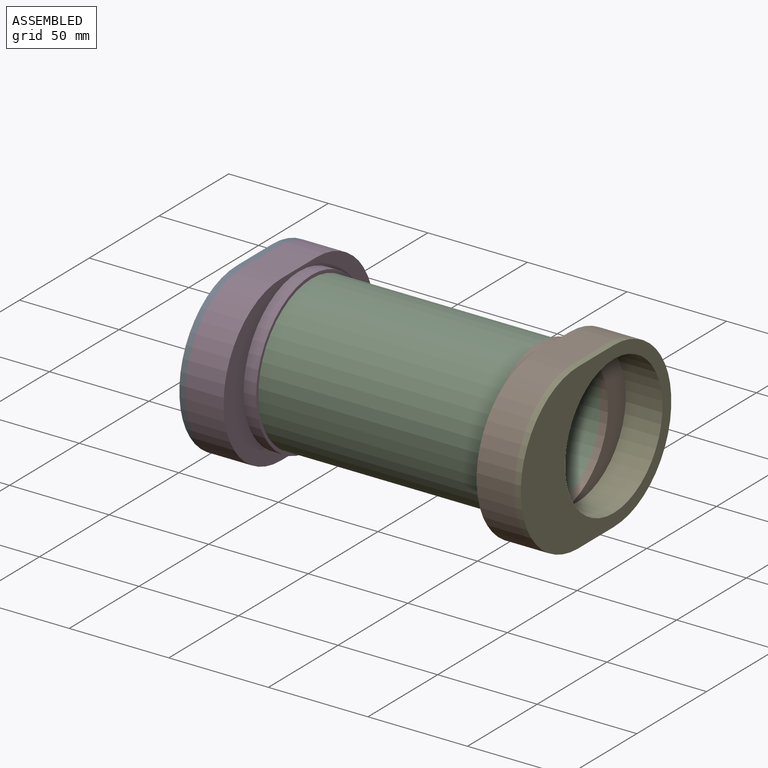
[diagram: assembled view]
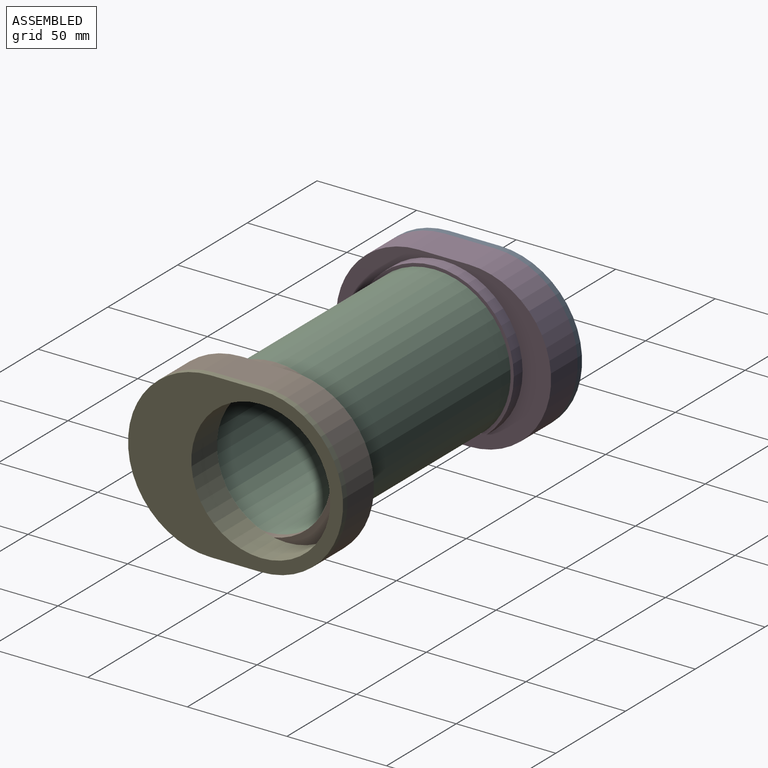
[diagram: assembled view, second angle]
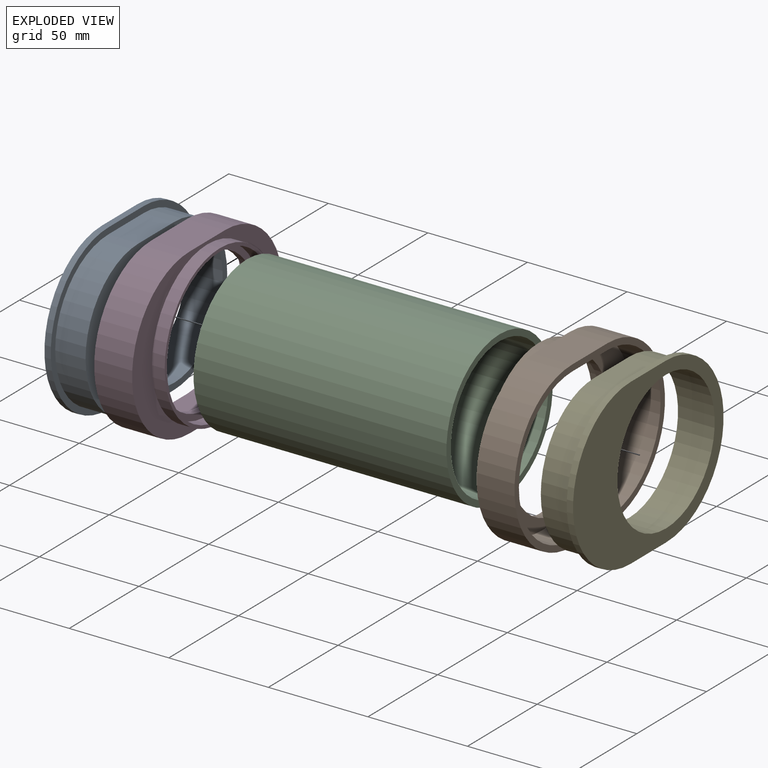
[diagram: exploded view]
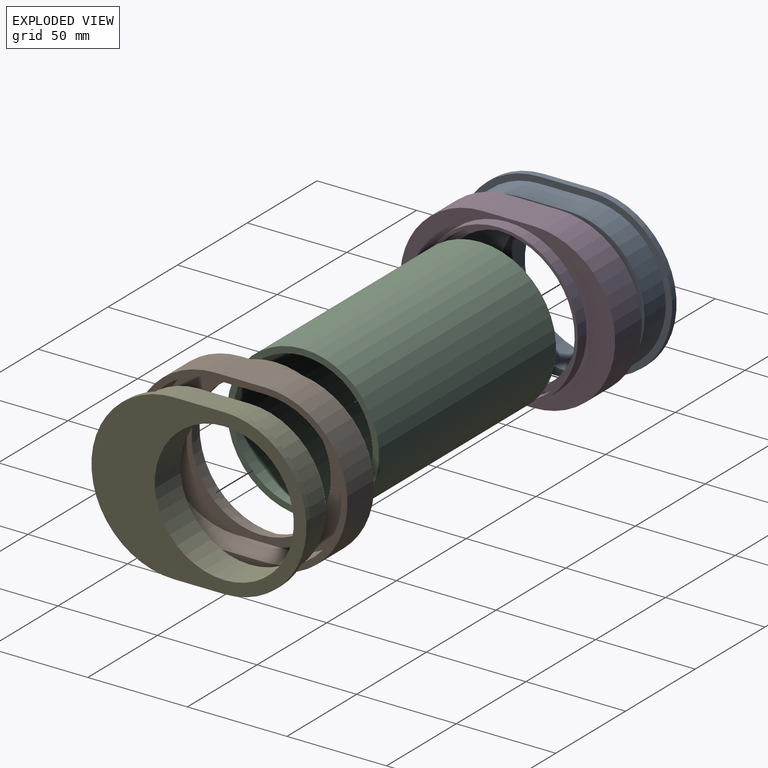
[diagram: exploded view, second angle]
ASSEMBLY  parts=5 mates=4
PART A: 12 faces, bbox 18.4x108x82.6 mm
  f0: plane 25.4x15.24mm, normal (0,0,1), area 387.1mm2, adj f1,f3,f4,f5
  f1: cylinder r=38.1mm len=76.2mm, axis (-1,0,0), area 1824.1mm2, adj f0,f2,f4,f5
  f2: plane 25.4x15.24mm, normal (0,0,-1), area 387.1mm2, adj f1,f3,f4,f5
  f3: cylinder r=38.1mm len=76.2mm, axis (-1,0,0), area 1824.1mm2, adj f0,f2,f4,f5
  f4: plane 101.6x76.2mm, normal (1,0,0), area 2663.9mm2, adj f0,f1,f2,f3,f11
  f5: plane 107.95x82.55mm, normal (1,0,0), area 953mm2, adj f0,f1,f2,f3,f6,f7,f8,f9
  f6: plane 25.4x3.18mm, normal (0,0,1), area 80.6mm2, adj f5,f7,f9,f10
  f7: cylinder r=41.27mm len=82.55mm, axis (1,0,0), area 411.7mm2, adj f5,f6,f8,f10
  f8: plane 25.4x3.18mm, normal (0,0,-1), area 80.6mm2, adj f5,f7,f9,f10
  f9: cylinder r=41.27mm len=82.55mm, axis (1,0,0), area 411.7mm2, adj f5,f6,f8,f10
  f10: plane 107.95x82.55mm, normal (-1,0,0), area 3616.9mm2, adj f6,f7,f8,f9,f11
  f11: cylinder r=34.92mm len=69.85mm, axis (-1,0,0), area 4041mm2, adj f4,f10
PART B: 16 faces, bbox 25.4x108x82.6 mm
  f0: cylinder r=34.92mm len=69.85mm, axis (-1,0,0), area 836.1mm2, adj f10,f11
  f1: cylinder r=41.27mm len=82.55mm, axis (-1,0,0), area 2470.2mm2, adj f2,f4,f5,f6
  f2: plane 25.4x19.05mm, normal (0,0,-1), area 483.9mm2, adj f1,f3,f5,f6
  f3: cylinder r=41.27mm len=82.55mm, axis (-1,0,0), area 2470.2mm2, adj f2,f4,f5,f6
  f4: plane 25.4x19.05mm, normal (0,0,1), area 483.9mm2, adj f1,f3,f5,f6
  f5: plane 107.95x82.55mm, normal (1,0,0), area 953mm2, adj f1,f2,f3,f4,f12,f13,f14,f15
  f6: plane 107.95x82.55mm, normal (-1,0,0), area 2500.6mm2, adj f1,f2,f3,f4,f8
  f7: cylinder r=38.1mm len=76.2mm, axis (1,0,0), area 1520.1mm2, adj f9,f10
  f8: cylinder r=39.69mm len=79.38mm, axis (1,0,0), area 1583.5mm2, adj f6,f9
  f9: plane 79.38x79.38mm, normal (-1,0,0), area 387.9mm2, adj f7,f8
  f10: plane 76.2x76.2mm, normal (-1,0,0), area 728.4mm2, adj f0,f7
  f11: plane 101.6x76.2mm, normal (1,0,0), area 2663.9mm2, adj f0,f12,f13,f14,f15
  f12: cylinder r=38.1mm len=76.2mm, axis (1,0,0), area 1824.1mm2, adj f5,f11,f13,f15
  f13: plane 25.4x15.24mm, normal (0,0,1), area 387.1mm2, adj f5,f11,f12,f14
  f14: cylinder r=38.1mm len=76.2mm, axis (1,0,0), area 1824.1mm2, adj f5,f11,f13,f15
  f15: plane 25.4x15.24mm, normal (0,0,-1), area 387.1mm2, adj f5,f11,f12,f14
PART C: 4 faces, bbox 127x76.2x76.2 mm
  f0: cylinder r=34.92mm len=127mm, axis (-1,0,0), area 27868.9mm2, adj f2,f3
  f1: cylinder r=38.1mm len=127mm, axis (-1,0,0), area 30402.4mm2, adj f2,f3
  f2: plane 76.2x76.2mm, normal (1,0,0), area 728.4mm2, adj f0,f1
  f3: plane 76.2x76.2mm, normal (-1,0,0), area 728.4mm2, adj f0,f1
PART D: same geometry as B
PART E: same geometry as A
PLACE A t=(-187.34,-59.17,9.13)mm
PLACE B t=(-41.29,-59.17,9.13)mm
PLACE C t=(-168.29,-59.17,9.13)mm
PLACE D rot(axis=(0,1,0),180deg) t=(-168.29,-59.17,9.13)mm
PLACE E rot(axis=(0,-1,0),180deg) t=(-22.24,-59.17,9.13)mm
MATE fastened B.f3 <-> E.f3  axis (1,0,0) through (-37.48,-46.47,9.13)mm
MATE fastened D.f7 <-> C.f0  axis (1,0,0) through (-168.29,-59.17,9.13)mm
MATE fastened A.f3 <-> D.f3  axis (1,0,0) through (-172.1,-46.47,9.13)mm
MATE fastened C.f0 <-> B.f7  axis (1,0,0) through (-41.29,-59.17,9.13)mm
